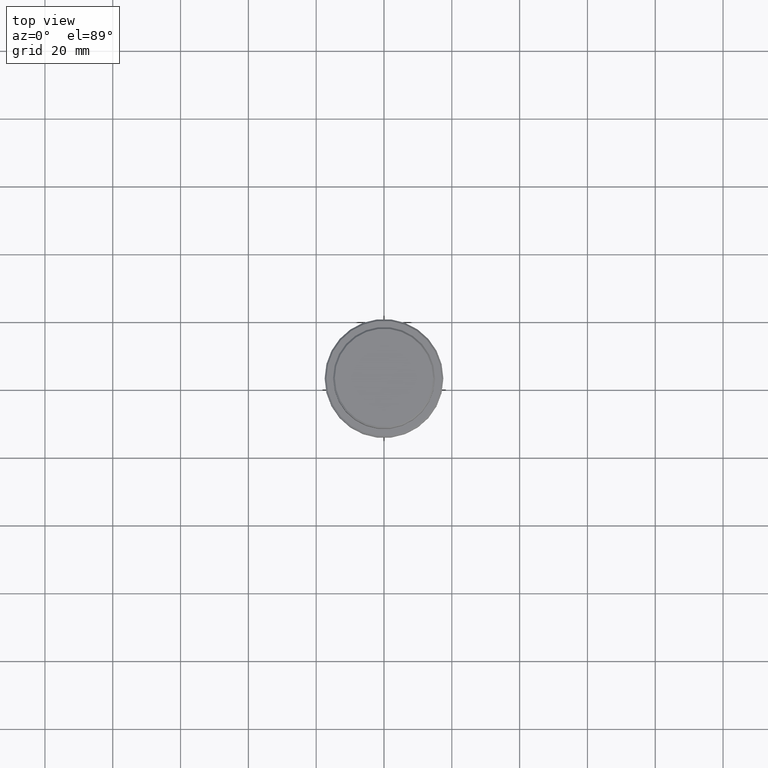
[diagram: clean part render]
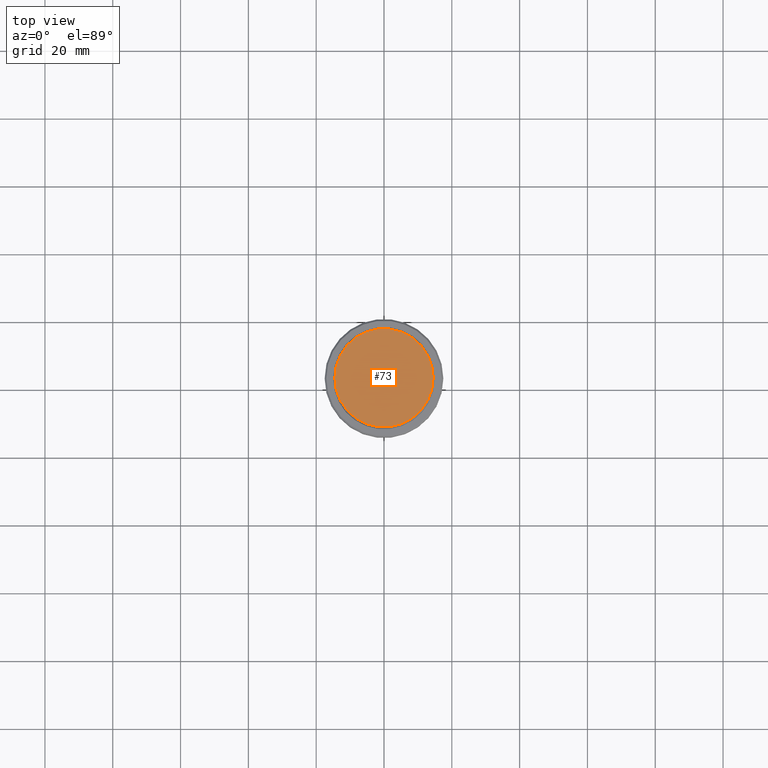
[diagram: same view with one face highlighted and labeled with its STEP entity id]
A machine part, top view. The second image highlights one B-rep face of the part: STEP entity #73.
In plain terms, the highlighted planar face has unit normal (0, -0, 1).
Its self-contained STEP definition (entity closure, byte-faithful):
#20 = CIRCLE ( 'NONE', #924, 14.49999999999998401 ) ;
#73 = ADVANCED_FACE ( 'NONE', ( #186 ), #505, .T. ) ;
#79 = CARTESIAN_POINT ( 'NONE',  ( 0.000000000000000000, 0.000000000000000000, 0.000000000000000000 ) ) ;
#117 = DIRECTION ( 'NONE',  ( -0.000000000000000000, -0.000000000000000000, 1.000000000000000000 ) ) ;
#172 = VERTEX_POINT ( 'NONE', #820 ) ;
#186 = FACE_OUTER_BOUND ( 'NONE', #1014, .T. ) ;
#421 = DIRECTION ( 'NONE',  ( -0.000000000000000000, -0.000000000000000000, 1.000000000000000000 ) ) ;
#478 = DIRECTION ( 'NONE',  ( 1.000000000000000000, 0.000000000000000000, 0.000000000000000000 ) ) ;
#505 = PLANE ( 'NONE',  #720 ) ;
#530 = CARTESIAN_POINT ( 'NONE',  ( 0.000000000000000000, 0.000000000000000000, 0.000000000000000000 ) ) ;
#602 = VERTEX_POINT ( 'NONE', #725 ) ;
#720 = AXIS2_PLACEMENT_3D ( 'NONE', #79, #1130, #1261 ) ;
#725 = CARTESIAN_POINT ( 'NONE',  ( 14.49999999999998401, 1.806354028742345013E-15, 0.000000000000000000 ) ) ;
#749 = CARTESIAN_POINT ( 'NONE',  ( 0.000000000000000000, 0.000000000000000000, 0.000000000000000000 ) ) ;
#771 = ORIENTED_EDGE ( 'NONE', *, *, #907, .T. ) ;
#780 = AXIS2_PLACEMENT_3D ( 'NONE', #749, #421, #1162 ) ;
#820 = CARTESIAN_POINT ( 'NONE',  ( -14.49999999999998401, 0.000000000000000000, 0.000000000000000000 ) ) ;
#907 = EDGE_CURVE ( 'NONE', #172, #602, #20, .T. ) ;
#924 = AXIS2_PLACEMENT_3D ( 'NONE', #530, #117, #478 ) ;
#950 = CIRCLE ( 'NONE', #780, 14.49999999999998401 ) ;
#989 = EDGE_CURVE ( 'NONE', #602, #172, #950, .T. ) ;
#1014 = EDGE_LOOP ( 'NONE', ( #771, #1236 ) ) ;
#1130 = DIRECTION ( 'NONE',  ( 0.000000000000000000, -0.000000000000000000, 1.000000000000000000 ) ) ;
#1162 = DIRECTION ( 'NONE',  ( 1.000000000000000000, 0.000000000000000000, 0.000000000000000000 ) ) ;
#1236 = ORIENTED_EDGE ( 'NONE', *, *, #989, .T. ) ;
#1261 = DIRECTION ( 'NONE',  ( 1.000000000000000000, 0.000000000000000000, 0.000000000000000000 ) ) ;